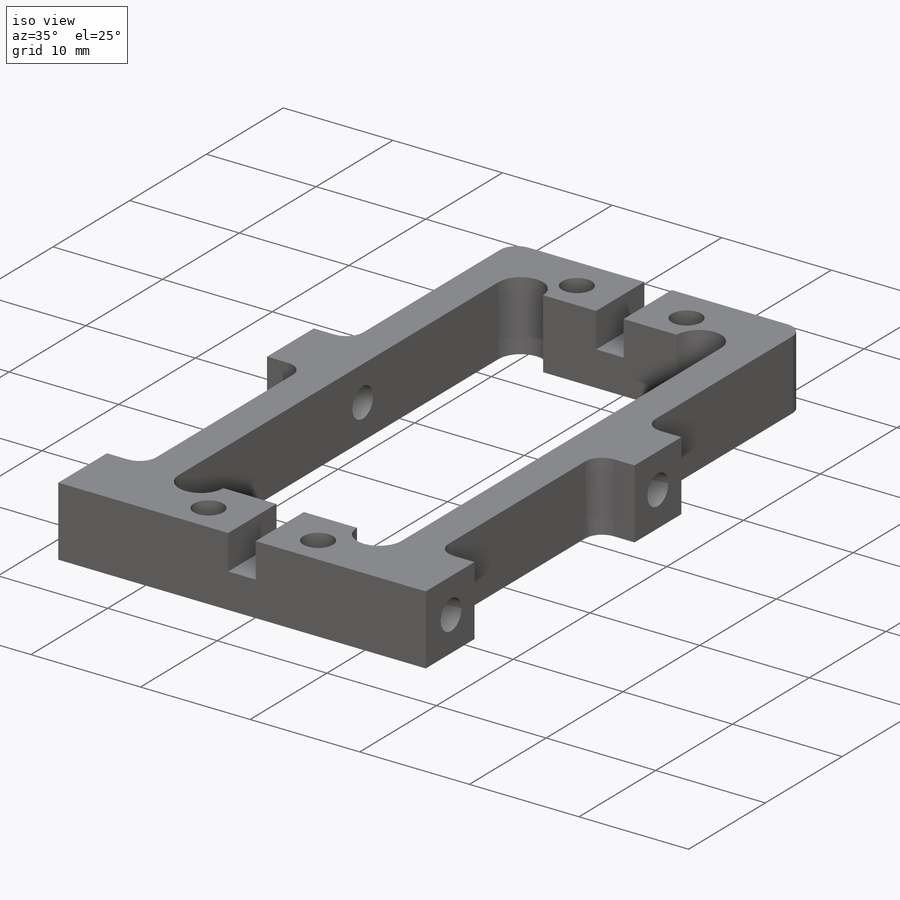
[diagram: iso view]
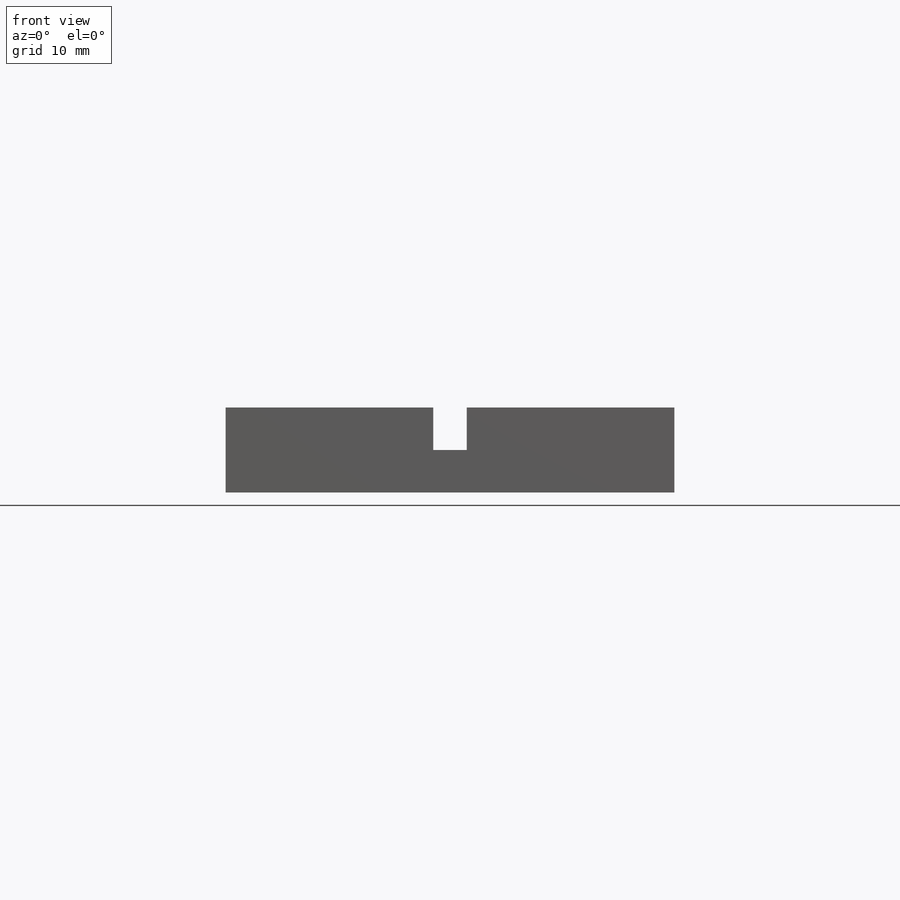
[diagram: front view]
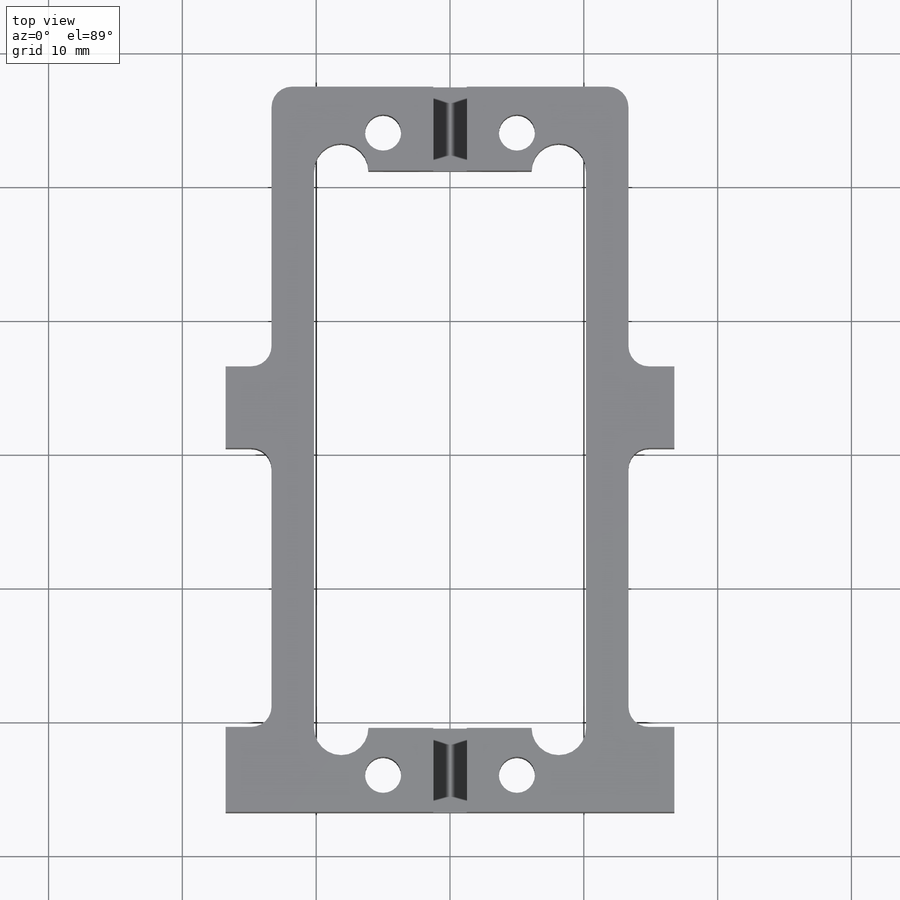
[diagram: top view]
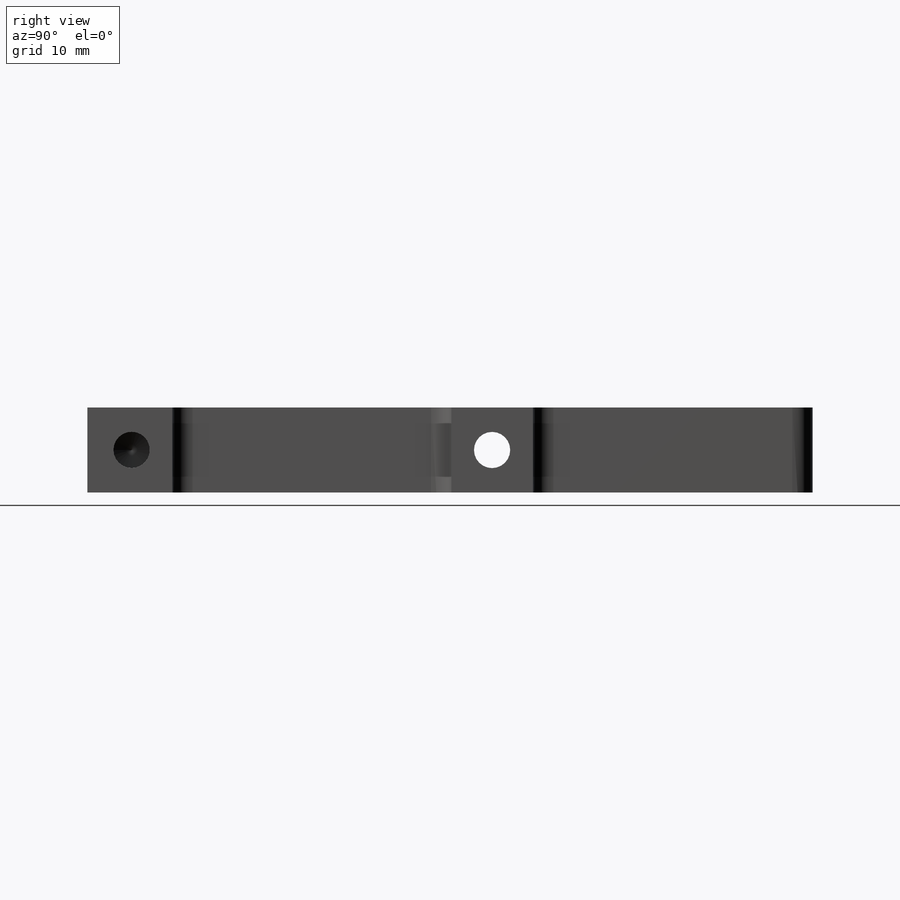
[diagram: right view]
SOLIDWORKS PART (.sldprt)
format: sldprt  version: not decoded by parser v0  size: 372,736 bytes
history: native  units: mm
features: sketch x8, thread x6, cut_extrude x3, hole x2, material x1, extrude x1, mirror x1 (+13 scaffold rows collapsed)
feature tree (35):
  scaffold x13  (default folders/planes/origin — collapsed)
  material  "Material <not specified>"
  sketch  "Sketch1"  dims[c1.D7=1.524mm c1.D1=33.528mm c1.D2=54.2036mm c2.D1=33.528mm c2.D2=54.2036mm c2.D3=13.335mm c2.D4=20.8534mm c2.D5=6.35mm c2.D6=6.096mm c2.D8=10.4267mm]
  extrude  "Boss-Extrude1"  Depth=6.35mm
  sketch  "Sketch2"  dims[D5=2.032mm D1=41.656mm D2=20.32mm D3=10.16mm D4=10.5mm]
  cut_extrude  "Cut-Extrude1"  [1 undecoded]
  hole  "#6-32 Tapped Hole1"  Diameter=2.7051mm Depth=6.35mm
  sketch  "Sketch4"  dims[D1=10.0mm D2=5.0mm D3=14.0mm D4=48.0mm]
  sketch  "Sketch3"  dims[hole-wizard template sketch: 60 standard entries collapsed; hole parameters kept: c18.Thru Tap Drill Depth=6.35mm]
  thread  "Hole Thread1"  Diameter=3.5052mm  [1 undecoded]
  thread  "Hole Thread2"  Diameter=3.5052mm  [1 undecoded]
  thread  "Hole Thread3"  Diameter=3.5052mm  [1 undecoded]
  thread  "Hole Thread4"  Diameter=3.5052mm  [1 undecoded]
  sketch  "Sketch5"  dims[D1=2.5mm D2=1.25mm]
  cut_extrude  "Cut-Extrude2"  [1 undecoded]
  hole  "#6-32 Tapped Hole2"  Diameter=2.7051mm Depth=6.604mm
  sketch  "Sketch7"  dims[c1.D1=19.05mm c1.D2=19.05mm c2.D2=45.0deg c2.D3=19.05mm]
  sketch  "Sketch6"  dims[hole-wizard template sketch: 47 standard entries collapsed; hole parameters kept: c15.Tap Drill Depth=6.604mm c15.D3=~14.816244mm c15.Drill Angle=118.0deg]
  thread  "Hole Thread5"  Diameter=6.604mm  [1 undecoded]
  thread  "Hole Thread8"  Diameter=6.604mm  [1 undecoded]
  mirror  "Mirror1"
  sketch  "Sketch8"
  cut_extrude  "Cut-Extrude3"  Depth=38.354mm
decode coverage: 17 of 21 modeling features carry decoded parameters
note: ~ marks probable driven/reference dimensions
note: 8 parameter values undecoded
note: suppression state not decoded; provenance and decode notes live in map.json
